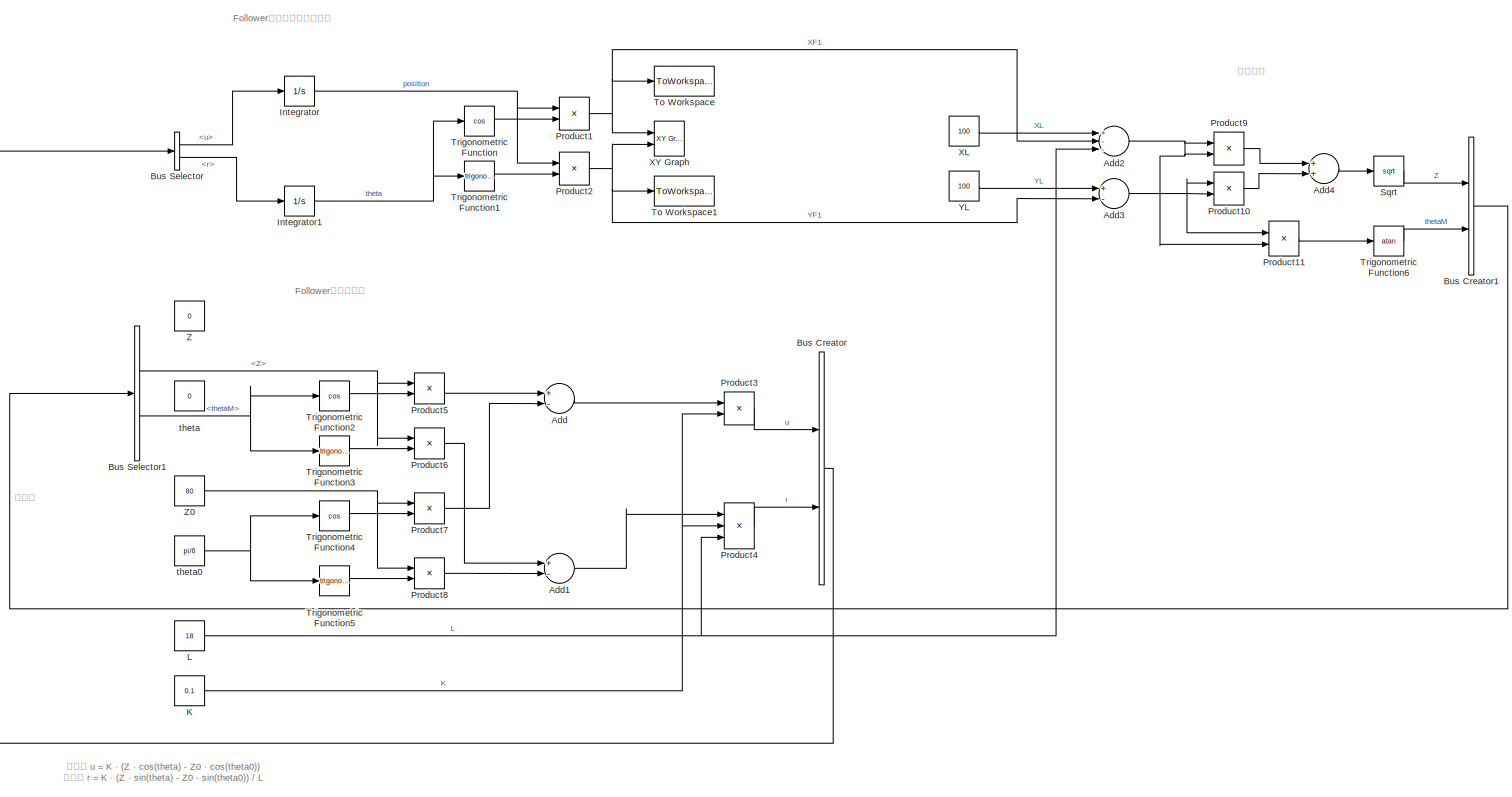
[diagram: root canvas - part 1/2, most of the canvas]
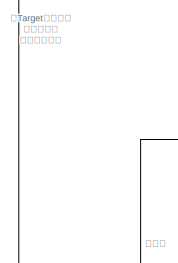
[diagram: root canvas - part 2/2, middle left region]
MODEL slx_b54efb5e5f81
KIND model
CONFIG AbsTol = auto
CONFIG EnableMultiTasking = off
CONFIG FixedStep = 0.1
CONFIG MaxStep = auto
CONFIG MinStep = auto
CONFIG RelTol = 1e-3
CONFIG SampleTimeConstraint = Unconstrained
CONFIG Solver = FixedStepAuto
CONFIG SolverName = FixedStepAuto
CONFIG StartTime = 0.0
CONFIG StopTime = 300
BLOCK [Sum] Add
  InputSameDT = off
  Inputs = +-
  OutDataTypeStr = Inherit: Inherit via internal rule
  Ports = [2, 1]
  SaturateOnIntegerOverflow = off
BLOCK [Sum] Add1
  InputSameDT = off
  Inputs = +-
  OutDataTypeStr = Inherit: Inherit via internal rule
  Ports = [2, 1]
  SaturateOnIntegerOverflow = off
BLOCK [Sum] Add2
  InputSameDT = off
  Inputs = +--
  OutDataTypeStr = Inherit: Inherit via internal rule
  Ports = [3, 1]
  SaturateOnIntegerOverflow = off
BLOCK [Sum] Add3
  InputSameDT = off
  Inputs = +-
  OutDataTypeStr = Inherit: Inherit via internal rule
  Ports = [2, 1]
  SaturateOnIntegerOverflow = off
BLOCK [Sum] Add4
  InputSameDT = off
  OutDataTypeStr = Inherit: Inherit via internal rule
  Ports = [2, 1]
  SaturateOnIntegerOverflow = off
BLOCK [BusCreator] Bus Creator
  DisplayOption = bar
  InheritFromInputs = on
  Inputs = 2
  Ports = [2, 1]
BLOCK [BusCreator] Bus Creator1
  DisplayOption = bar
  InheritFromInputs = on
  Inputs = 2
  Ports = [2, 1]
BLOCK [BusSelector] Bus Selector
  OutputAsBus = off
  OutputSignals = u,r
  Ports = [1, 2]
BLOCK [BusSelector] Bus Selector1
  OutputAsBus = off
  OutputSignals = Z,thetaM
  Ports = [1, 2]
BLOCK [Integrator] Integrator
  Ports = [1, 1]
BLOCK [Integrator] Integrator1
  Ports = [1, 1]
BLOCK [Constant] K
  Value = 0.1
BLOCK [Constant] L
  Value = 18
BLOCK [Product] Product1
  InputSameDT = off
  OutDataTypeStr = Inherit: Inherit via internal rule
  Ports = [2, 1]
  RndMeth = Floor
  SaturateOnIntegerOverflow = off
BLOCK [Product] Product10
  InputSameDT = off
  OutDataTypeStr = Inherit: Inherit via internal rule
  Ports = [2, 1]
  RndMeth = Floor
  SaturateOnIntegerOverflow = off
BLOCK [Product] Product11
  InputSameDT = off
  Inputs = */
  OutDataTypeStr = Inherit: Inherit via internal rule
  Ports = [2, 1]
  RndMeth = Floor
  SaturateOnIntegerOverflow = off
BLOCK [Product] Product2
  InputSameDT = off
  OutDataTypeStr = Inherit: Inherit via internal rule
  Ports = [2, 1]
  RndMeth = Floor
  SaturateOnIntegerOverflow = off
BLOCK [Product] Product3
  InputSameDT = off
  OutDataTypeStr = Inherit: Inherit via internal rule
  Ports = [2, 1]
  RndMeth = Floor
  SaturateOnIntegerOverflow = off
BLOCK [Product] Product4
  InputSameDT = off
  Inputs = **/
  OutDataTypeStr = Inherit: Inherit via internal rule
  Ports = [3, 1]
  RndMeth = Floor
  SaturateOnIntegerOverflow = off
BLOCK [Product] Product5
  InputSameDT = off
  OutDataTypeStr = Inherit: Inherit via internal rule
  Ports = [2, 1]
  RndMeth = Floor
  SaturateOnIntegerOverflow = off
BLOCK [Product] Product6
  InputSameDT = off
  OutDataTypeStr = Inherit: Inherit via internal rule
  Ports = [2, 1]
  RndMeth = Floor
  SaturateOnIntegerOverflow = off
BLOCK [Product] Product7
  InputSameDT = off
  OutDataTypeStr = Inherit: Inherit via internal rule
  Ports = [2, 1]
  RndMeth = Floor
  SaturateOnIntegerOverflow = off
BLOCK [Product] Product8
  InputSameDT = off
  OutDataTypeStr = Inherit: Inherit via internal rule
  Ports = [2, 1]
  RndMeth = Floor
  SaturateOnIntegerOverflow = off
BLOCK [Product] Product9
  InputSameDT = off
  OutDataTypeStr = Inherit: Inherit via internal rule
  Ports = [2, 1]
  RndMeth = Floor
  SaturateOnIntegerOverflow = off
BLOCK [Sqrt] Sqrt
BLOCK [ToWorkspace] To Workspace
  FixptAsFi = on
  MaxDataPoints = inf
  Ports = [1]
  SampleTime = -1
  Save2DSignal = 3-D array (concatenate along third dimension)
  SaveFormat = Timeseries
  VariableName = XF1
BLOCK [ToWorkspace] To Workspace1
  FixptAsFi = on
  MaxDataPoints = inf
  Ports = [1]
  SampleTime = -1
  Save2DSignal = 3-D array (concatenate along third dimension)
  SaveFormat = Timeseries
  VariableName = YF1
BLOCK [Trigonometry] Trigonometric Function
  Operator = cos
  Ports = [1, 1]
BLOCK [Trigonometry] Trigonometric Function1
  Ports = [1, 1]
BLOCK [Trigonometry] Trigonometric Function2
  Operator = cos
  Ports = [1, 1]
BLOCK [Trigonometry] Trigonometric Function3
  Ports = [1, 1]
BLOCK [Trigonometry] Trigonometric Function4
  Operator = cos
  Ports = [1, 1]
BLOCK [Trigonometry] Trigonometric Function5
  Ports = [1, 1]
BLOCK [Trigonometry] Trigonometric Function6
  Operator = atan
  Ports = [1, 1]
BLOCK [Constant] XL
  Value = 100
BLOCK [Reference] XY Graph  REF=simulink/Sinks/XY Graph
  Ports = [2]
  SourceBlock = simulink/Sinks/XY Graph
  SourceProductBaseCode = SL
  SourceProductName = Simulink
  SourceType = XY scope.
BLOCK [Constant] YL
  Value = 100
BLOCK [Constant] Z
  Value = 0
BLOCK [Constant] Z0
  Value = 80
BLOCK [Constant] theta
  Value = 0
BLOCK [Constant] theta0
  Value = pi/6
ANNOTATION (root): 与Target目标节点 距离和角度 由传感器测得
ANNOTATION (root): Follower无控制输入自由运动
ANNOTATION (root): Follower控制器设计
ANNOTATION (root): 参数值
ANNOTATION (root): 坐标转换
ANNOTATION (root): 线速度 u = K · (Z · cos(theta) - Z0 · cos(theta0)) 角速度 r = K · (Z · sin(theta) - Z0 · sin(theta0)) / L
LINE Add1:1 -> Product4:1
NET Add2:1 -> Product11:2, Product9:1, Product9:2
NET Add3:1 -> Product10:1, Product10:2, Product11:1
LINE Add4:1 -> Sqrt:1
LINE Add:1 -> Product3:1
LINE Bus Creator1:1 -> Bus Selector1:1
LINE Bus Creator:1 -> Bus Selector:1
NET Bus Selector1:1 -> Product5:1, Product6:1
NET Bus Selector1:2 -> Trigonometric Function2:1, Trigonometric Function3:1
LINE Bus Selector:1 -> Integrator:1
LINE Bus Selector:2 -> Integrator1:1
NET Integrator1:1 -> Trigonometric Function1:1, Trigonometric Function:1
NET Integrator:1 -> Product1:1, Product2:1
NET K:1 -> Product3:2, Product4:2
NET L:1 -> Add2:3, Product4:3
LINE Product10:1 -> Add4:2
LINE Product11:1 -> Trigonometric Function6:1
NET Product1:1 -> Add2:2, To Workspace:1, XY Graph:1
NET Product2:1 -> Add3:2, To Workspace1:1, XY Graph:2
LINE Product3:1 -> Bus Creator:1
LINE Product4:1 -> Bus Creator:2
LINE Product5:1 -> Add:1
LINE Product6:1 -> Add1:1
LINE Product7:1 -> Add:2
LINE Product8:1 -> Add1:2
LINE Product9:1 -> Add4:1
LINE Sqrt:1 -> Bus Creator1:1
LINE Trigonometric Function1:1 -> Product2:2
LINE Trigonometric Function2:1 -> Product5:2
LINE Trigonometric Function3:1 -> Product6:2
LINE Trigonometric Function4:1 -> Product7:2
LINE Trigonometric Function5:1 -> Product8:2
LINE Trigonometric Function6:1 -> Bus Creator1:2
LINE Trigonometric Function:1 -> Product1:2
LINE XL:1 -> Add2:1
LINE YL:1 -> Add3:1
NET Z0:1 -> Product7:1, Product8:1
NET theta0:1 -> Trigonometric Function4:1, Trigonometric Function5:1
note: NET lines group one-source signal fan-out (src -> all destinations, sorted); 1:1 wires keep LINE
